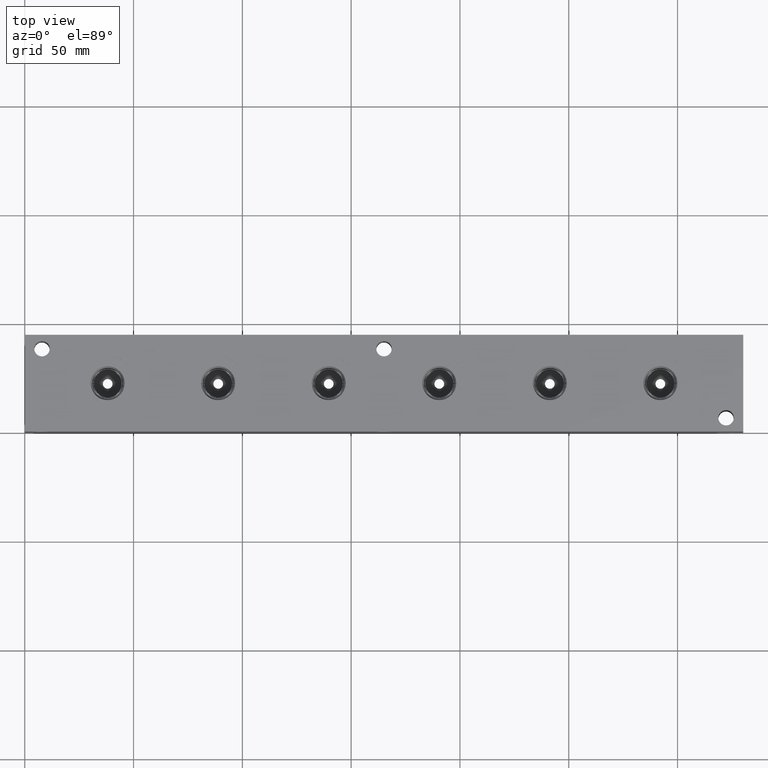
[diagram: clean part render]
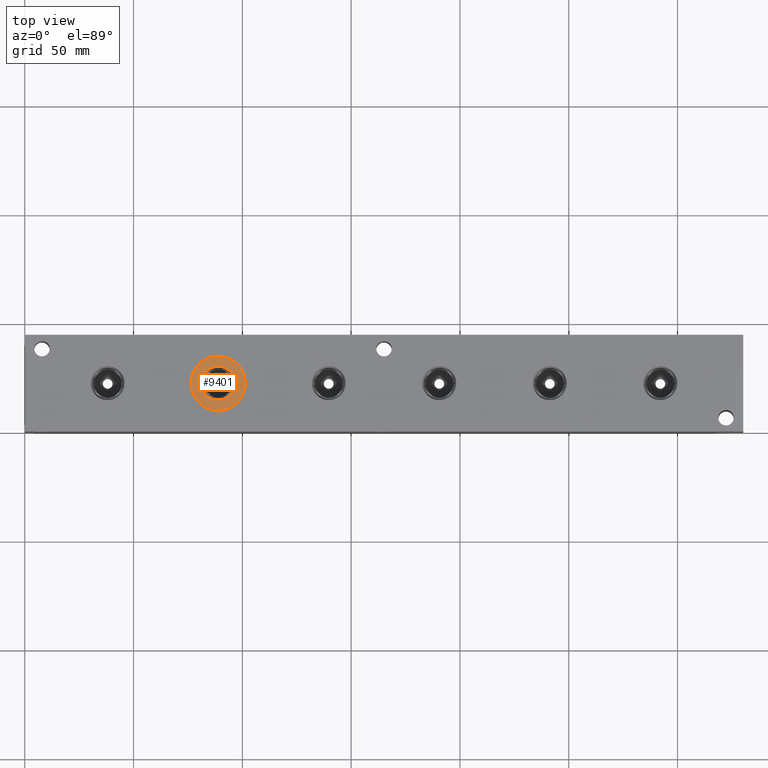
[diagram: same view with one face highlighted and labeled with its STEP entity id]
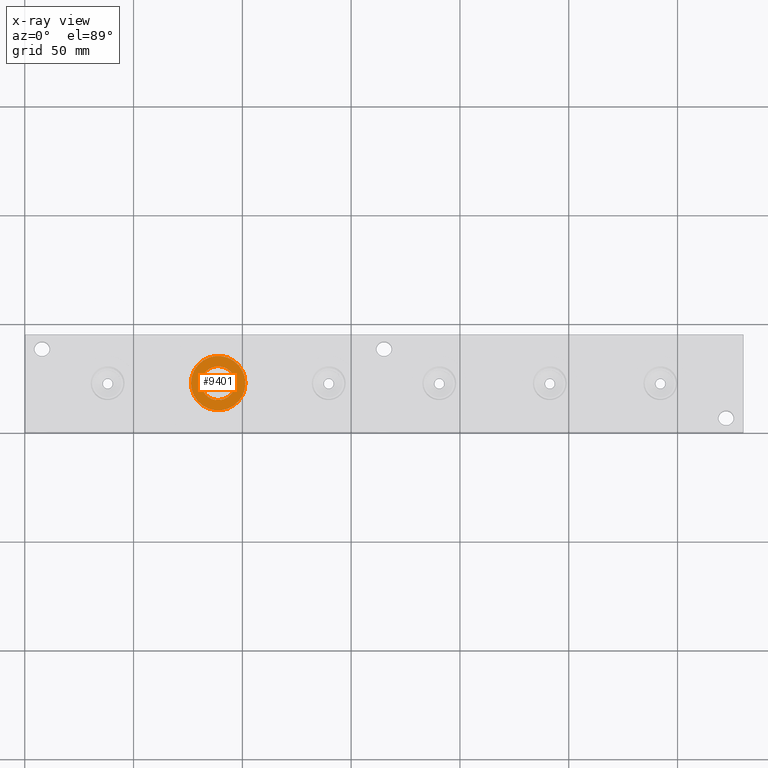
[diagram: x-ray of the same camera — body ghosted, the highlighted face saturated]
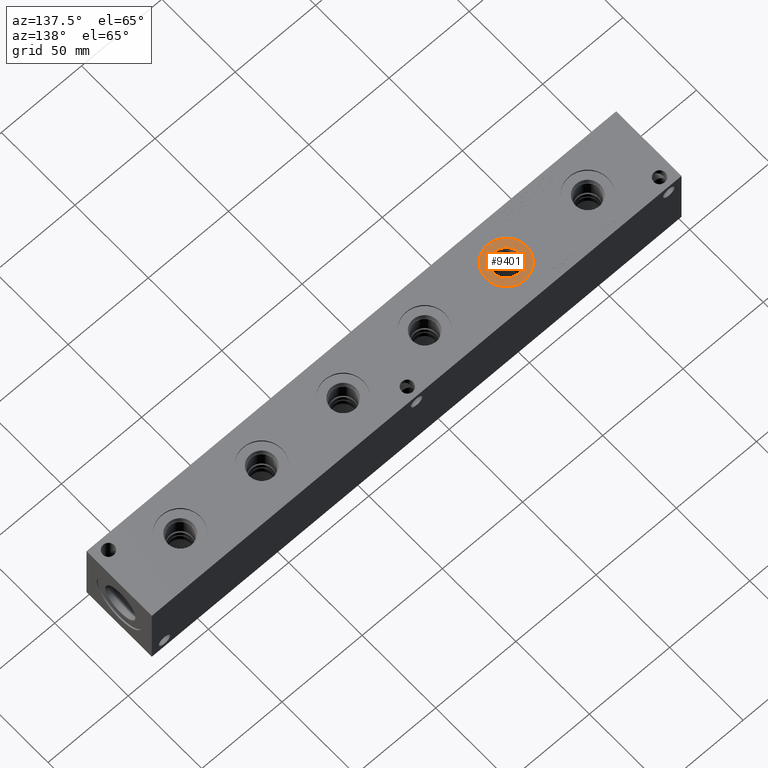
[diagram: same view with one face highlighted and labeled with its STEP entity id]
A machine part, top view. The second image highlights one B-rep face of the part: STEP entity #9401.
The next image is the same camera in x-ray: the body ghosted, the highlighted face saturated — about 0% of this face is hidden behind the body in this view.
A second angle (auxiliary view) of the same face is appended — the face is thin or edge-on in the first view.
In plain terms, the highlighted planar face has unit normal (0, 0, -1).
Its self-contained STEP definition (entity closure, byte-faithful):
#391=CIRCLE('',#10028,12.5095);
#392=CIRCLE('',#10029,12.5095);
#393=CIRCLE('',#10031,7.79780000000001);
#394=CIRCLE('',#10032,7.79780000000001);
#515=FACE_BOUND('',#1776,.T.);
#762=PLANE('',#10030);
#1224=FACE_OUTER_BOUND('',#1775,.T.);
#1775=EDGE_LOOP('',(#8284,#8285));
#1776=EDGE_LOOP('',(#8286,#8287));
#4471=VERTEX_POINT('',#16307);
#4472=VERTEX_POINT('',#16309);
#4473=VERTEX_POINT('',#16313);
#4474=VERTEX_POINT('',#16314);
#5766=EDGE_CURVE('',#4471,#4472,#391,.T.);
#5767=EDGE_CURVE('',#4472,#4471,#392,.T.);
#5768=EDGE_CURVE('',#4473,#4474,#393,.T.);
#5769=EDGE_CURVE('',#4474,#4473,#394,.T.);
#8284=ORIENTED_EDGE('',*,*,#5767,.F.);
#8285=ORIENTED_EDGE('',*,*,#5766,.F.);
#8286=ORIENTED_EDGE('',*,*,#5768,.T.);
#8287=ORIENTED_EDGE('',*,*,#5769,.T.);
#9401=ADVANCED_FACE('',(#1224,#515),#762,.F.);
#10028=AXIS2_PLACEMENT_3D('',#16310,#12027,#12028);
#10029=AXIS2_PLACEMENT_3D('',#16311,#12029,#12030);
#10030=AXIS2_PLACEMENT_3D('',#16312,#12031,#12032);
#10031=AXIS2_PLACEMENT_3D('',#16315,#12033,#12034);
#10032=AXIS2_PLACEMENT_3D('',#16316,#12035,#12036);
#12027=DIRECTION('center_axis',(0.,0.,-1.));
#12028=DIRECTION('ref_axis',(1.,0.,0.));
#12029=DIRECTION('center_axis',(0.,0.,-1.));
#12030=DIRECTION('ref_axis',(1.,0.,0.));
#12031=DIRECTION('center_axis',(0.,0.,-1.));
#12032=DIRECTION('ref_axis',(-1.,0.,0.));
#12033=DIRECTION('center_axis',(0.,0.,-1.));
#12034=DIRECTION('ref_axis',(1.,0.,0.));
#12035=DIRECTION('center_axis',(0.,0.,-1.));
#12036=DIRECTION('ref_axis',(1.,0.,0.));
#16307=CARTESIAN_POINT('',(76.3905,22.225,43.6626));
#16309=CARTESIAN_POINT('',(101.4095,22.225,43.6626));
#16310=CARTESIAN_POINT('Origin',(88.9,22.225,43.6626));
#16311=CARTESIAN_POINT('Origin',(88.9,22.225,43.6626));
#16312=CARTESIAN_POINT('Origin',(96.6978,22.225,43.6626));
#16313=CARTESIAN_POINT('',(96.6978,22.225,43.6626));
#16314=CARTESIAN_POINT('',(81.1022,22.225,43.6626));
#16315=CARTESIAN_POINT('Origin',(88.9,22.225,43.6626));
#16316=CARTESIAN_POINT('Origin',(88.9,22.225,43.6626));